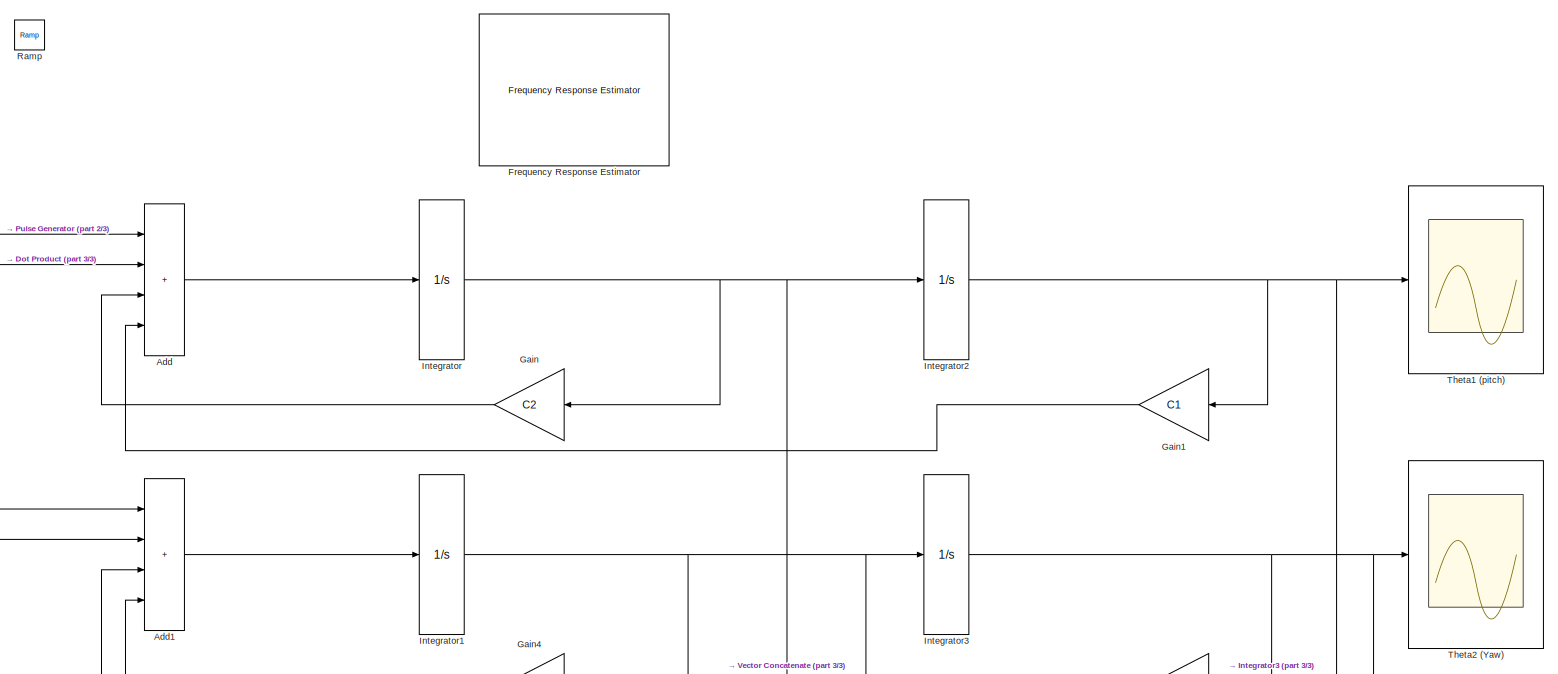
[diagram: root canvas - part 1/3, full width, top band]
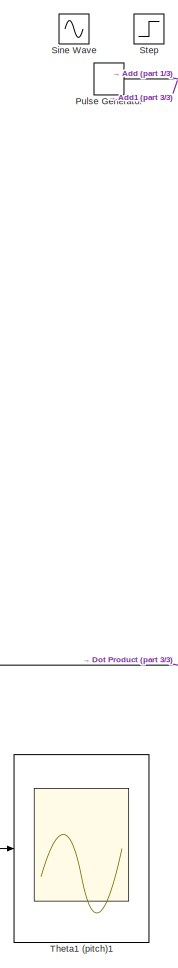
[diagram: root canvas - part 2/3, left side, full height]
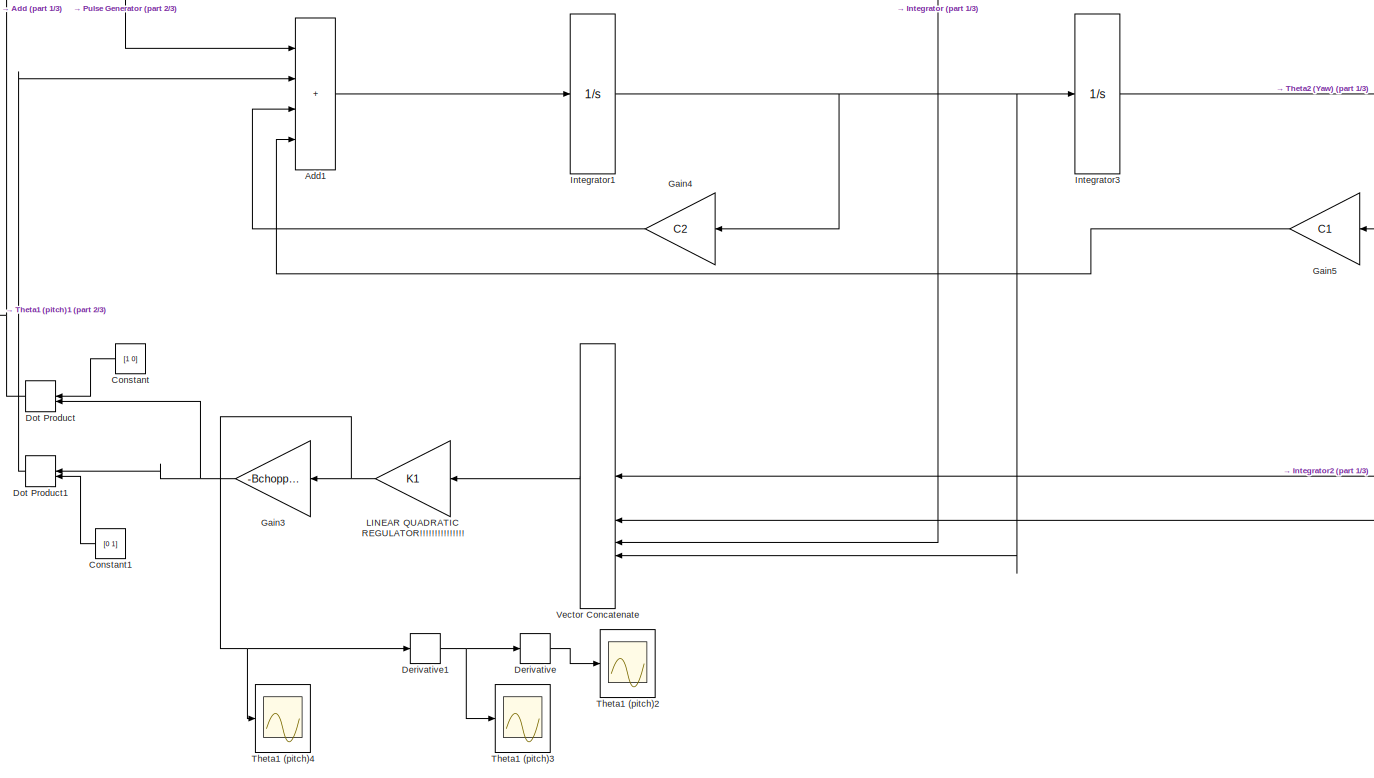
[diagram: root canvas - part 3/3, bottom center region]
MODEL slx_6e5b679ebf5c
KIND model
CONFIG AbsTol = auto
CONFIG EnableMultiTasking = off
CONFIG FixedStep = auto
CONFIG MaxStep = auto
CONFIG MinStep = auto
CONFIG RelTol = 1e-3
CONFIG SampleTimeConstraint = Unconstrained
CONFIG SolverName = VariableStepAuto
CONFIG StartTime = 0.0
CONFIG StopTime = 10
BLOCK [Sum] Add
  IconShape = rectangular
  Inputs = ++++
BLOCK [Sum] Add1
  IconShape = rectangular
  Inputs = ++++
BLOCK [Constant] Constant
  Value = [1 0]
BLOCK [Constant] Constant1
  Value = [0 1]
BLOCK [Derivative] Derivative
BLOCK [Derivative] Derivative1
BLOCK [DotProduct] Dot Product
  OutDataTypeStr = Inherit: Inherit via internal rule
BLOCK [DotProduct] Dot Product1
  OutDataTypeStr = Inherit: Inherit via internal rule
BLOCK [Reference] Frequency Response Estimator  REF=slctrlblks/Frequency Response Estimator
  SourceBlock = slctrlblks/Frequency Response Estimator
  SourceType = Frequency Response Estimator
BLOCK [Gain] Gain
  Gain = C2
BLOCK [Gain] Gain1
  Gain = C1
BLOCK [Gain] Gain3
  Gain = -Bchopped
  Multiplication = Matrix(K*u)
BLOCK [Gain] Gain4
  Gain = C2
BLOCK [Gain] Gain5
  Gain = C1
BLOCK [Integrator] Integrator
BLOCK [Integrator] Integrator1
BLOCK [Integrator] Integrator2
BLOCK [Integrator] Integrator3
BLOCK [Gain] LINEAR QUADRATIC REGULATOR!!!!!!!!!!!!!!! 
  Gain = K1
  Multiplication = Matrix(K*u)
BLOCK [DiscretePulseGenerator] Pulse Generator
  Amplitude = 150
  Period = 10
  PulseType = Time based
BLOCK [Reference] Ramp  REF=simulink/Sources/Ramp
  SourceBlock = simulink/Sources/Ramp
  SourceType = Ramp
BLOCK [Sin] Sine Wave
  Amplitude = 100
  SampleTime = 0
BLOCK [Step] Step
  After = 500
  SampleTime = 0
BLOCK [Scope] Theta1 (pitch)
  Floating = off
  NumInputPorts = 1
  ScopeSpecificationString = Simulink.scopes.TimeScopeBlockCfg('CurrentConfiguration', extmgr.ConfigurationSet(extmgr.Configuration('Core','General UI',true),extmgr.Configuration('Core','Source UI',true),extmgr.Configuration('Sources','WiredSimulink',true),extmgr.Configuration('Visuals','Time Domain',true,'SerializedDisplays',{struct('MinYLimReal','-0.02069','MaxYLimReal','0.18604','YLabelReal','','MinYLimMag','0.00000','MaxY...<+1359ch>
BLOCK [Scope] Theta1 (pitch)1
  Floating = off
  NumInputPorts = 1
  ScopeSpecificationString = Simulink.scopes.TimeScopeBlockCfg('CurrentConfiguration', extmgr.ConfigurationSet(extmgr.Configuration('Core','General UI',true),extmgr.Configuration('Core','Source UI',true),extmgr.Configuration('Sources','WiredSimulink',true,'DataLoggingVariableName','ScopeData2'),extmgr.Configuration('Visuals','Time Domain',true,'SerializedDisplays',{struct('MinYLimReal','-144.84657','MaxYLimReal','87.61141','Y...<+1410ch>
BLOCK [Scope] Theta1 (pitch)2
  Floating = off
  NumInputPorts = 1
  ScopeSpecificationString = Simulink.scopes.TimeScopeBlockCfg('CurrentConfiguration', extmgr.ConfigurationSet(extmgr.Configuration('Core','General UI',true),extmgr.Configuration('Core','Source UI',true),extmgr.Configuration('Sources','WiredSimulink',true,'DataLoggingVariableName','ScopeData1'),extmgr.Configuration('Visuals','Time Domain',true,'SerializedDisplays',{struct('MinYLimReal','-5917680414688454195326329290752.00000'...<+1686ch>
BLOCK [Scope] Theta1 (pitch)3
  Floating = off
  NumInputPorts = 1
  ScopeSpecificationString = Simulink.scopes.TimeScopeBlockCfg('CurrentConfiguration', extmgr.ConfigurationSet(extmgr.Configuration('Core','General UI',true),extmgr.Configuration('Core','Source UI',true),extmgr.Configuration('Sources','WiredSimulink',true,'DataLoggingVariableName','ScopeData2'),extmgr.Configuration('Visuals','Time Domain',true,'SerializedDisplays',{struct('MinYLimReal','-145.95374','MaxYLimReal','182.19848','...<+1462ch>
BLOCK [Scope] Theta1 (pitch)4
  Floating = off
  NumInputPorts = 1
  ScopeSpecificationString = Simulink.scopes.TimeScopeBlockCfg('CurrentConfiguration', extmgr.ConfigurationSet(extmgr.Configuration('Core','General UI',true),extmgr.Configuration('Core','Source UI',true),extmgr.Configuration('Sources','WiredSimulink',true,'DataLoggingVariableName','ScopeData3'),extmgr.Configuration('Visuals','Time Domain',true,'SerializedDisplays',{struct('MinYLimReal','-1.39805','MaxYLimReal','2.31138','YLab...<+1572ch>
BLOCK [Scope] Theta2 (Yaw)
  Floating = off
  NumInputPorts = 1
  ScopeSpecificationString = Simulink.scopes.TimeScopeBlockCfg('CurrentConfiguration', extmgr.ConfigurationSet(extmgr.Configuration('Core','General UI',true),extmgr.Configuration('Core','Source UI',true),extmgr.Configuration('Sources','WiredSimulink',true,'DataLoggingVariableName','ScopeData1'),extmgr.Configuration('Visuals','Time Domain',true),extmgr.Configuration('Tools','Plot Navigation',true),extmgr.Configuration('Tools',...<+40ch>
BLOCK [Concatenate] Vector Concatenate
  NumInputs = 4
LINE Add1:1 -> Integrator1:1
LINE Add:1 -> Integrator:1
LINE Constant1:1 -> Dot Product1:2
LINE Constant:1 -> Dot Product:1
NET Derivative1:1 -> Derivative:1, Theta1 (pitch)3:1
LINE Derivative:1 -> Theta1 (pitch)2:1
LINE Dot Product1:1 -> Add1:2
NET Dot Product:1 -> Add:2, Theta1 (pitch)1:1
LINE Gain1:1 -> Add:4
NET Gain3:1 -> Dot Product1:1, Dot Product:2
LINE Gain4:1 -> Add1:3
LINE Gain5:1 -> Add1:4
LINE Gain:1 -> Add:3
NET Integrator1:1 -> Gain4:1, Integrator3:1, Vector Concatenate:4
NET Integrator2:1 -> Gain1:1, Theta1 (pitch):1, Vector Concatenate:1
NET Integrator3:1 -> Gain5:1, Theta2 (Yaw):1, Vector Concatenate:2
NET Integrator:1 -> Gain:1, Integrator2:1, Vector Concatenate:3
NET LINEAR QUADRATIC REGULATOR!!!!!!!!!!!!!!! :1 -> Derivative1:1, Gain3:1, Theta1 (pitch)4:1
NET Pulse Generator:1 -> Add1:1, Add:1
LINE Vector Concatenate:1 -> LINEAR QUADRATIC REGULATOR!!!!!!!!!!!!!!! :1
note: NET lines group one-source signal fan-out (src -> all destinations, sorted); 1:1 wires keep LINE
